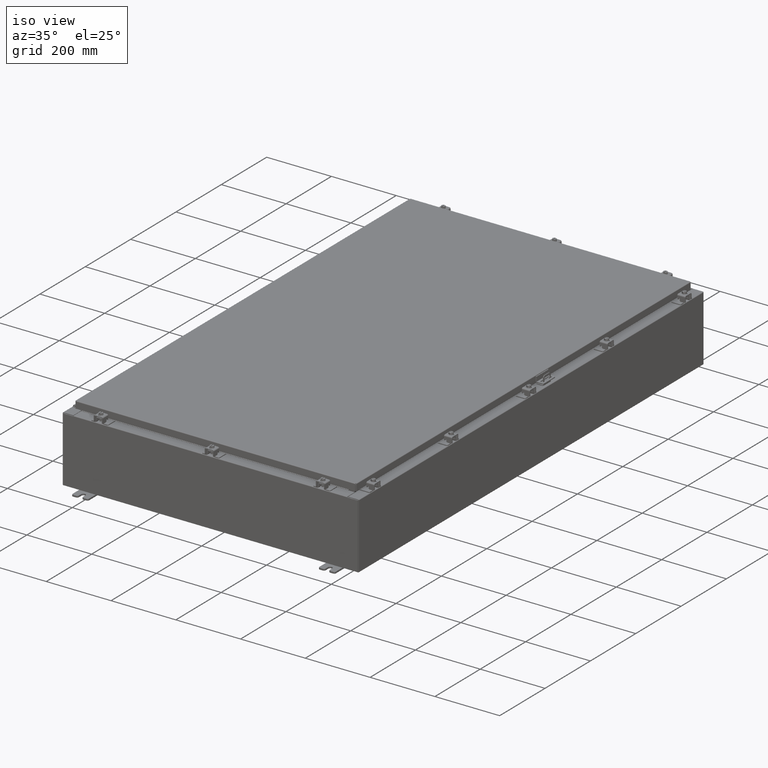
[diagram: clean part render]
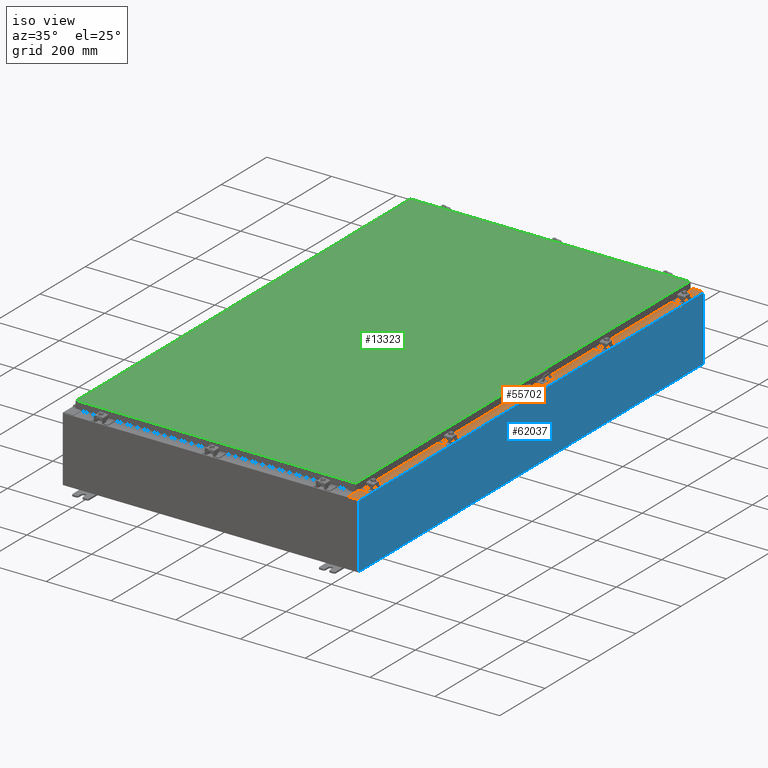
[diagram: same view with three faces highlighted in distinct colors, each labeled with its STEP entity id]
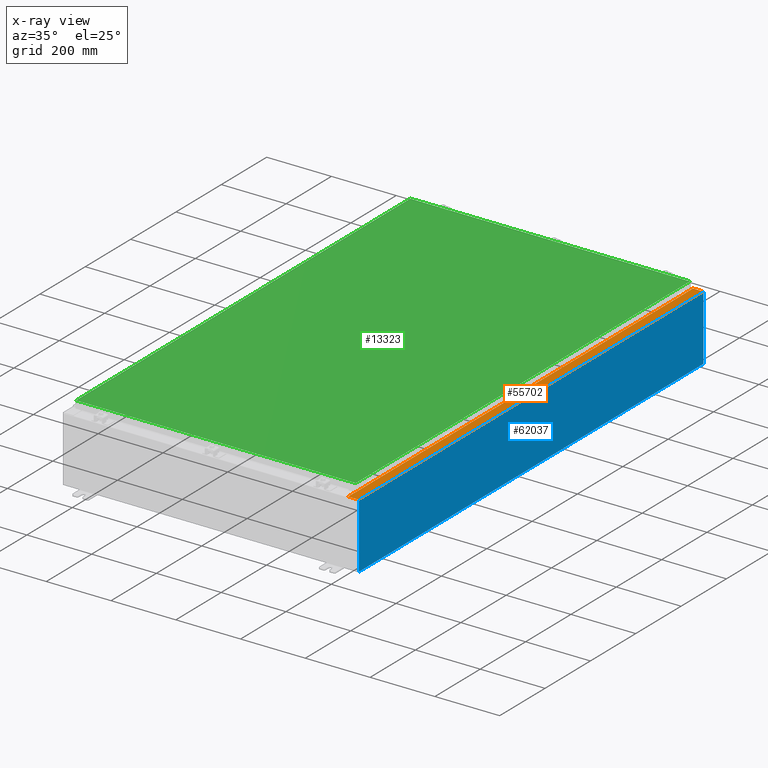
[diagram: x-ray of the same camera — body ghosted, the three highlighted faces saturated]
A machine part, iso view with three faces highlighted in distinct colors.
The next image is the same camera in x-ray (body ghosted, the three faces saturated) — at least one of them is partly hidden behind the body in this view.
Their STEP definitions:

[orange] entity #55702 — the highlighted planar face has unit normal (-0, -0, -1).
#848 = ORIENTED_EDGE ( 'NONE', *, *, #56410, .F. ) ;
#904 = ORIENTED_EDGE ( 'NONE', *, *, #7717, .F. ) ;
#1379 = DIRECTION ( 'NONE',  ( 1.000000000000000000, 0.0000000000000000000, 0.0000000000000000000 ) ) ;
#5193 = CARTESIAN_POINT ( 'NONE',  ( 16.75005000000003000, -28.59375000000001100, 7.925300000000007100 ) ) ;
#5359 = LINE ( 'NONE', #40225, #28876 ) ;
#5507 = LINE ( 'NONE', #19794, #30591 ) ;
#5581 = CARTESIAN_POINT ( 'NONE',  ( 4.972393517341169600E-014, 1.446983983732005500E-016, 7.925300000000111900 ) ) ;
#5756 = CIRCLE ( 'NONE', #33943, 0.01867499999999949400 ) ;
#6277 = ORIENTED_EDGE ( 'NONE', *, *, #46552, .T. ) ;
#6347 = ORIENTED_EDGE ( 'NONE', *, *, #36368, .F. ) ;
#6996 = EDGE_CURVE ( 'NONE', #51700, #28156, #26571, .T. ) ;
#7531 = FACE_OUTER_BOUND ( 'NONE', #50635, .T. ) ;
#7717 = EDGE_CURVE ( 'NONE', #30069, #23899, #10740, .T. ) ;
#10603 = DIRECTION ( 'NONE',  ( -1.000000000000000000, 0.0000000000000000000, 6.241167087353086200E-015 ) ) ;
#10740 = LINE ( 'NONE', #42214, #49111 ) ;
#10928 = ORIENTED_EDGE ( 'NONE', *, *, #37307, .T. ) ;
#11445 = EDGE_CURVE ( 'NONE', #53103, #60466, #58256, .T. ) ;
#11517 = ORIENTED_EDGE ( 'NONE', *, *, #27187, .T. ) ;
#12312 = CARTESIAN_POINT ( 'NONE',  ( 17.91230000000002300, -29.92530000000001100, 7.925300000000000900 ) ) ;
#13059 = LINE ( 'NONE', #35609, #61355 ) ;
#13090 = VERTEX_POINT ( 'NONE', #13845 ) ;
#13845 = CARTESIAN_POINT ( 'NONE',  ( 17.91230000000002300, 29.92529999999999300, 7.925300000000000000 ) ) ;
#14333 = CARTESIAN_POINT ( 'NONE',  ( 16.75005000000003000, -28.63110000000000700, 7.925300000000008900 ) ) ;
#15243 = CIRCLE ( 'NONE', #41927, 0.01867499999999949400 ) ;
#15865 = EDGE_CURVE ( 'NONE', #51700, #32615, #20578, .T. ) ;
#16405 = VERTEX_POINT ( 'NONE', #12312 ) ;
#17472 = VERTEX_POINT ( 'NONE', #18895 ) ;
#18295 = CARTESIAN_POINT ( 'NONE',  ( 16.71270000000003000, 28.59374999999999600, 7.925300000000008900 ) ) ;
#18895 = CARTESIAN_POINT ( 'NONE',  ( 16.75005000000003000, 28.59374999999999600, 7.925300000000007100 ) ) ;
#19794 = CARTESIAN_POINT ( 'NONE',  ( 4.972393517341169600E-014, 29.92529999999999300, 7.925300000000111900 ) ) ;
#20570 = DIRECTION ( 'NONE',  ( -0.0000000000000000000, 1.000000000000000000, -0.0000000000000000000 ) ) ;
#20578 = LINE ( 'NONE', #51896, #60263 ) ;
#21728 = VECTOR ( 'NONE', #39614, 39.37007874015748100 ) ;
#23178 = DIRECTION ( 'NONE',  ( 1.000000000000000000, 0.0000000000000000000, -6.241167087353087800E-015 ) ) ;
#23782 = DIRECTION ( 'NONE',  ( 1.000000000000000000, 0.0000000000000000000, 0.0000000000000000000 ) ) ;
#23899 = VERTEX_POINT ( 'NONE', #47748 ) ;
#24420 = DIRECTION ( 'NONE',  ( 6.241167087353086200E-015, 1.825778183452973300E-017, 1.000000000000000000 ) ) ;
#25059 = EDGE_CURVE ( 'NONE', #13090, #16405, #5359, .T. ) ;
#25060 = CARTESIAN_POINT ( 'NONE',  ( 16.69970000000002800, 1.446983983731986500E-016, 7.925300000000008900 ) ) ;
#25410 = LINE ( 'NONE', #25060, #48840 ) ;
#26571 = LINE ( 'NONE', #31618, #55398 ) ;
#27187 = EDGE_CURVE ( 'NONE', #13090, #63842, #5507, .T. ) ;
#28156 = VERTEX_POINT ( 'NONE', #14333 ) ;
#28876 = VECTOR ( 'NONE', #39377, 39.37007874015748100 ) ;
#30069 = VERTEX_POINT ( 'NONE', #44459 ) ;
#30591 = VECTOR ( 'NONE', #59568, 39.37007874015748100 ) ;
#31311 = DIRECTION ( 'NONE',  ( 6.241167087353086200E-015, 1.825778183452973300E-017, 1.000000000000000000 ) ) ;
#31455 = ORIENTED_EDGE ( 'NONE', *, *, #11445, .F. ) ;
#31618 = CARTESIAN_POINT ( 'NONE',  ( 16.69970000000002800, -28.63110000000000700, 7.925300000000008900 ) ) ;
#31775 = LINE ( 'NONE', #45473, #43540 ) ;
#31827 = ORIENTED_EDGE ( 'NONE', *, *, #6996, .F. ) ;
#32615 = VERTEX_POINT ( 'NONE', #37783 ) ;
#32918 = ORIENTED_EDGE ( 'NONE', *, *, #15865, .T. ) ;
#33024 = CARTESIAN_POINT ( 'NONE',  ( 4.972393517341169600E-014, -29.92530000000001100, 7.925300000000113700 ) ) ;
#33943 = AXIS2_PLACEMENT_3D ( 'NONE', #61061, #31311, #1379 ) ;
#35601 = PLANE ( 'NONE',  #50257 ) ;
#35609 = CARTESIAN_POINT ( 'NONE',  ( 16.71270000000003000, 28.59374999999999600, 7.925300000000008900 ) ) ;
#36368 = EDGE_CURVE ( 'NONE', #37859, #17472, #13059, .T. ) ;
#37307 = EDGE_CURVE ( 'NONE', #32615, #16405, #49684, .T. ) ;
#37783 = CARTESIAN_POINT ( 'NONE',  ( 16.69970000000002800, -29.92530000000001100, 7.925300000000009800 ) ) ;
#37817 = ORIENTED_EDGE ( 'NONE', *, *, #25059, .F. ) ;
#37859 = VERTEX_POINT ( 'NONE', #18295 ) ;
#38367 = ORIENTED_EDGE ( 'NONE', *, *, #46459, .F. ) ;
#39377 = DIRECTION ( 'NONE',  ( -0.0000000000000000000, -1.000000000000000000, 1.825778183452973300E-017 ) ) ;
#39614 = DIRECTION ( 'NONE',  ( -1.000000000000000000, 0.0000000000000000000, 0.0000000000000000000 ) ) ;
#40225 = CARTESIAN_POINT ( 'NONE',  ( 17.91230000000002300, -29.92530000000001100, 7.925300000000000900 ) ) ;
#40633 = ORIENTED_EDGE ( 'NONE', *, *, #46661, .F. ) ;
#40646 = DIRECTION ( 'NONE',  ( -6.241167087353086200E-015, -1.825778183452973300E-017, -1.000000000000000000 ) ) ;
#40656 = DIRECTION ( 'NONE',  ( 1.000000000000000000, 0.0000000000000000000, 0.0000000000000000000 ) ) ;
#41927 = AXIS2_PLACEMENT_3D ( 'NONE', #54232, #24420, #59159 ) ;
#42214 = CARTESIAN_POINT ( 'NONE',  ( 16.75005000000003000, 28.63109999999999600, 7.925300000000008900 ) ) ;
#43523 = DIRECTION ( 'NONE',  ( -1.000000000000000000, 0.0000000000000000000, 0.0000000000000000000 ) ) ;
#43540 = VECTOR ( 'NONE', #20570, 39.37007874015748100 ) ;
#44459 = CARTESIAN_POINT ( 'NONE',  ( 16.75005000000003000, 28.63109999999999600, 7.925300000000007100 ) ) ;
#45473 = CARTESIAN_POINT ( 'NONE',  ( 16.71270000000003000, -28.59375000000001400, 7.925300000000008900 ) ) ;
#46459 = EDGE_CURVE ( 'NONE', #17472, #30069, #15243, .T. ) ;
#46552 = EDGE_CURVE ( 'NONE', #63842, #23899, #25410, .T. ) ;
#46661 = EDGE_CURVE ( 'NONE', #28156, #53103, #5756, .T. ) ;
#47003 = CARTESIAN_POINT ( 'NONE',  ( 16.69970000000002800, -28.63110000000000700, 7.925300000000008900 ) ) ;
#47028 = CARTESIAN_POINT ( 'NONE',  ( 16.71270000000003000, -28.59375000000001100, 7.925300000000008900 ) ) ;
#47748 = CARTESIAN_POINT ( 'NONE',  ( 16.69970000000002800, 28.63109999999998900, 7.925300000000008900 ) ) ;
#48840 = VECTOR ( 'NONE', #49914, 39.37007874015748100 ) ;
#49111 = VECTOR ( 'NONE', #43523, 39.37007874015748100 ) ;
#49684 = LINE ( 'NONE', #33024, #61236 ) ;
#49914 = DIRECTION ( 'NONE',  ( 0.0000000000000000000, -1.000000000000000000, 1.825778183452973300E-017 ) ) ;
#50257 = AXIS2_PLACEMENT_3D ( 'NONE', #5581, #40646, #10603 ) ;
#50635 = EDGE_LOOP ( 'NONE', ( #31827, #32918, #10928, #37817, #11517, #6277, #904, #38367, #6347, #848, #31455, #40633 ) ) ;
#51625 = DIRECTION ( 'NONE',  ( 0.0000000000000000000, -1.000000000000000000, 1.825778183452973300E-017 ) ) ;
#51700 = VERTEX_POINT ( 'NONE', #47003 ) ;
#51896 = CARTESIAN_POINT ( 'NONE',  ( 16.69970000000002800, 1.446983983731986500E-016, 7.925300000000008900 ) ) ;
#53103 = VERTEX_POINT ( 'NONE', #5193 ) ;
#54157 = CARTESIAN_POINT ( 'NONE',  ( 16.75005000000003000, -28.59375000000001100, 7.925300000000008900 ) ) ;
#54232 = CARTESIAN_POINT ( 'NONE',  ( 16.75005000000003000, 28.61242499999999500, 7.925300000000008900 ) ) ;
#55398 = VECTOR ( 'NONE', #23782, 39.37007874015748100 ) ;
#55702 = ADVANCED_FACE ( 'NONE', ( #7531 ), #35601, .F. ) ;
#56410 = EDGE_CURVE ( 'NONE', #60466, #37859, #31775, .T. ) ;
#57080 = CARTESIAN_POINT ( 'NONE',  ( 16.69970000000002800, 29.92529999999999300, 7.925300000000008900 ) ) ;
#58256 = LINE ( 'NONE', #54157, #21728 ) ;
#59159 = DIRECTION ( 'NONE',  ( 1.000000000000000000, 0.0000000000000000000, 0.0000000000000000000 ) ) ;
#59568 = DIRECTION ( 'NONE',  ( -1.000000000000000000, 0.0000000000000000000, 6.241167087353087800E-015 ) ) ;
#60263 = VECTOR ( 'NONE', #51625, 39.37007874015748100 ) ;
#60466 = VERTEX_POINT ( 'NONE', #47028 ) ;
#61061 = CARTESIAN_POINT ( 'NONE',  ( 16.75005000000003000, -28.61242500000000900, 7.925300000000008900 ) ) ;
#61236 = VECTOR ( 'NONE', #23178, 39.37007874015748100 ) ;
#61355 = VECTOR ( 'NONE', #40656, 39.37007874015748100 ) ;
#63842 = VERTEX_POINT ( 'NONE', #57080 ) ;

[blue] entity #62037 — the highlighted planar face has unit normal (-1, 0, 0).
#873 = EDGE_CURVE ( 'NONE', #2159, #22199, #14452, .T. ) ;
#1996 = DIRECTION ( 'NONE',  ( 3.584876173029202900E-015, 0.0000000000000000000, 1.000000000000000000 ) ) ;
#2159 = VERTEX_POINT ( 'NONE', #11753 ) ;
#11753 = CARTESIAN_POINT ( 'NONE',  ( 18.00000000000002500, 29.92529999999999300, 7.837599999999999200 ) ) ;
#13165 = EDGE_CURVE ( 'NONE', #13869, #57975, #21687, .T. ) ;
#13217 = DIRECTION ( 'NONE',  ( -0.0000000000000000000, -1.000000000000000000, -0.0000000000000000000 ) ) ;
#13677 = CARTESIAN_POINT ( 'NONE',  ( 18.00000000000002500, 29.92529999999999300, 7.837599999999999200 ) ) ;
#13869 = VERTEX_POINT ( 'NONE', #18661 ) ;
#14452 = LINE ( 'NONE', #13677, #39510 ) ;
#14579 = ORIENTED_EDGE ( 'NONE', *, *, #59148, .T. ) ;
#18661 = CARTESIAN_POINT ( 'NONE',  ( 17.99999999999999600, 29.92529999999999300, 0.01299999999999984700 ) ) ;
#20054 = AXIS2_PLACEMENT_3D ( 'NONE', #56726, #31939, #1996 ) ;
#21687 = LINE ( 'NONE', #46705, #46713 ) ;
#22199 = VERTEX_POINT ( 'NONE', #51333 ) ;
#26100 = DIRECTION ( 'NONE',  ( -3.584876173029202900E-015, 0.0000000000000000000, -1.000000000000000000 ) ) ;
#27314 = EDGE_CURVE ( 'NONE', #22199, #57975, #47786, .T. ) ;
#28584 = FACE_OUTER_BOUND ( 'NONE', #44933, .T. ) ;
#30664 = DIRECTION ( 'NONE',  ( 3.584876173029202900E-015, 0.0000000000000000000, 1.000000000000000000 ) ) ;
#31939 = DIRECTION ( 'NONE',  ( -1.000000000000000000, 0.0000000000000000000, 3.584876173029202900E-015 ) ) ;
#35233 = VECTOR ( 'NONE', #30664, 39.37007874015748100 ) ;
#36188 = ORIENTED_EDGE ( 'NONE', *, *, #13165, .F. ) ;
#36947 = ORIENTED_EDGE ( 'NONE', *, *, #27314, .T. ) ;
#39510 = VECTOR ( 'NONE', #13217, 39.37007874015748100 ) ;
#42761 = ORIENTED_EDGE ( 'NONE', *, *, #873, .T. ) ;
#42783 = DIRECTION ( 'NONE',  ( -0.0000000000000000000, -1.000000000000000000, -0.0000000000000000000 ) ) ;
#44933 = EDGE_LOOP ( 'NONE', ( #42761, #36947, #36188, #14579 ) ) ;
#45768 = CARTESIAN_POINT ( 'NONE',  ( 17.99999999999999600, 29.92529999999998900, -6.478858477053722900E-014 ) ) ;
#46705 = CARTESIAN_POINT ( 'NONE',  ( 17.99999999999999600, -29.92530000000001100, 0.01299999999999984700 ) ) ;
#46713 = VECTOR ( 'NONE', #42783, 39.37007874015748100 ) ;
#47786 = LINE ( 'NONE', #55894, #62406 ) ;
#51333 = CARTESIAN_POINT ( 'NONE',  ( 18.00000000000002500, -29.92530000000001100, 7.837599999999999200 ) ) ;
#51523 = CARTESIAN_POINT ( 'NONE',  ( 17.99999999999999600, -29.92530000000001100, 0.01299999999999983600 ) ) ;
#51615 = LINE ( 'NONE', #45768, #35233 ) ;
#55894 = CARTESIAN_POINT ( 'NONE',  ( 17.99999999999999600, -29.92530000000001100, -6.478858477053722900E-014 ) ) ;
#56726 = CARTESIAN_POINT ( 'NONE',  ( 17.99999999999999600, 0.0000000000000000000, -6.478858477053722900E-014 ) ) ;
#57975 = VERTEX_POINT ( 'NONE', #51523 ) ;
#59148 = EDGE_CURVE ( 'NONE', #13869, #2159, #51615, .T. ) ;
#61674 = PLANE ( 'NONE',  #20054 ) ;
#62037 = ADVANCED_FACE ( 'NONE', ( #28584 ), #61674, .F. ) ;
#62406 = VECTOR ( 'NONE', #26100, 39.37007874015748100 ) ;

[green] entity #13323 — the highlighted planar face has unit normal (0, 0, -1).
#4035 = EDGE_CURVE ( 'NONE', #28386, #38629, #55192, .T. ) ;
#4527 = CARTESIAN_POINT ( 'NONE',  ( 16.99030000000000500, 29.00630000000000300, 1.946441695485787500E-015 ) ) ;
#6261 = EDGE_CURVE ( 'NONE', #38629, #54078, #53898, .T. ) ;
#13323 = ADVANCED_FACE ( 'NONE', ( #27137 ), #31352, .F. ) ;
#14900 = DIRECTION ( 'NONE',  ( -1.000000000000000000, -0.0000000000000000000, -0.0000000000000000000 ) ) ;
#15438 = VECTOR ( 'NONE', #25132, 39.37007874015748100 ) ;
#21934 = DIRECTION ( 'NONE',  ( 1.000000000000000000, -0.0000000000000000000, -0.0000000000000000000 ) ) ;
#23203 = LINE ( 'NONE', #4527, #34900 ) ;
#25132 = DIRECTION ( 'NONE',  ( 0.0000000000000000000, -1.000000000000000000, 0.0000000000000000000 ) ) ;
#25389 = CARTESIAN_POINT ( 'NONE',  ( -16.99029999999999800, -29.00630000000000300, 1.946441695485787500E-015 ) ) ;
#27137 = FACE_OUTER_BOUND ( 'NONE', #54638, .T. ) ;
#28386 = VERTEX_POINT ( 'NONE', #55679 ) ;
#28730 = CARTESIAN_POINT ( 'NONE',  ( -16.99029999999998400, 29.00630000000000000, 4.166068190338001500E-015 ) ) ;
#30626 = CARTESIAN_POINT ( 'NONE',  ( 16.99030000000000500, 29.00630000000000300, 1.946441695485787500E-015 ) ) ;
#30827 = AXIS2_PLACEMENT_3D ( 'NONE', #31497, #51738, #32795 ) ;
#31352 = PLANE ( 'NONE',  #30827 ) ;
#31497 = CARTESIAN_POINT ( 'NONE',  ( 0.0000000000000000000, 0.0000000000000000000, 0.0000000000000000000 ) ) ;
#32795 = DIRECTION ( 'NONE',  ( -1.000000000000000000, 0.0000000000000000000, -0.0000000000000000000 ) ) ;
#33904 = ORIENTED_EDGE ( 'NONE', *, *, #6261, .T. ) ;
#34494 = ORIENTED_EDGE ( 'NONE', *, *, #56353, .T. ) ;
#34900 = VECTOR ( 'NONE', #14900, 39.37007874015748100 ) ;
#36441 = CARTESIAN_POINT ( 'NONE',  ( 16.99030000000000500, -29.00630000000000000, -2.048885995248197400E-016 ) ) ;
#38629 = VERTEX_POINT ( 'NONE', #53331 ) ;
#43237 = ORIENTED_EDGE ( 'NONE', *, *, #4035, .T. ) ;
#49407 = CARTESIAN_POINT ( 'NONE',  ( 16.99030000000000500, -29.00630000000000000, -2.048885995248197400E-016 ) ) ;
#50505 = LINE ( 'NONE', #36441, #63604 ) ;
#51235 = DIRECTION ( 'NONE',  ( 0.0000000000000000000, 1.000000000000000000, 0.0000000000000000000 ) ) ;
#51738 = DIRECTION ( 'NONE',  ( 0.0000000000000000000, 0.0000000000000000000, -1.000000000000000000 ) ) ;
#53331 = CARTESIAN_POINT ( 'NONE',  ( -16.99029999999999800, -29.00630000000000300, 1.946441695485787500E-015 ) ) ;
#53898 = LINE ( 'NONE', #25389, #63921 ) ;
#54078 = VERTEX_POINT ( 'NONE', #49407 ) ;
#54638 = EDGE_LOOP ( 'NONE', ( #33904, #61834, #34494, #43237 ) ) ;
#55055 = VERTEX_POINT ( 'NONE', #30626 ) ;
#55192 = LINE ( 'NONE', #28730, #15438 ) ;
#55679 = CARTESIAN_POINT ( 'NONE',  ( -16.99029999999998400, 29.00630000000000000, 4.166068190338001500E-015 ) ) ;
#56353 = EDGE_CURVE ( 'NONE', #55055, #28386, #23203, .T. ) ;
#61834 = ORIENTED_EDGE ( 'NONE', *, *, #64274, .T. ) ;
#63604 = VECTOR ( 'NONE', #51235, 39.37007874015748100 ) ;
#63921 = VECTOR ( 'NONE', #21934, 39.37007874015748100 ) ;
#64274 = EDGE_CURVE ( 'NONE', #54078, #55055, #50505, .T. ) ;